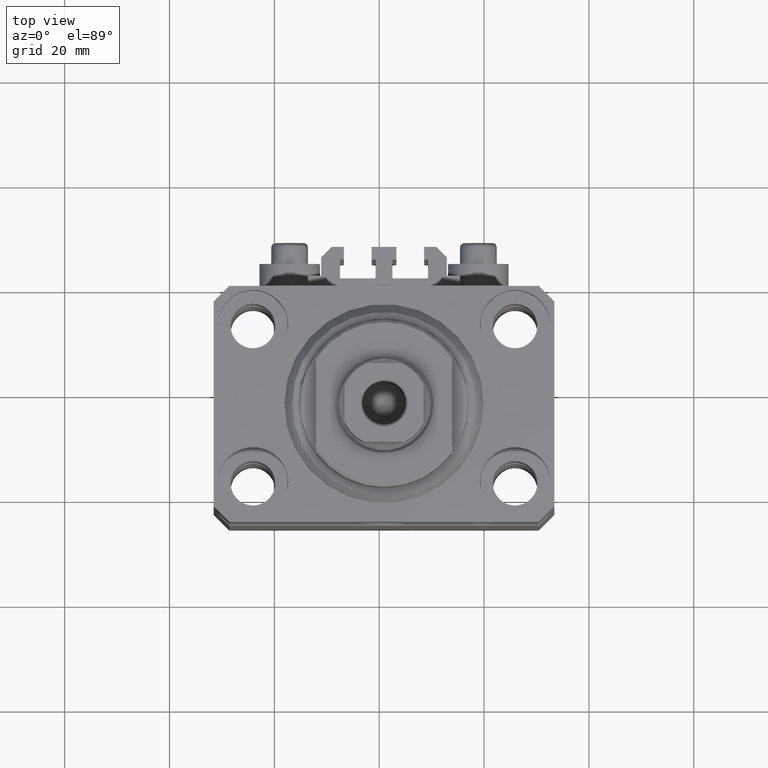
[diagram: clean part render]
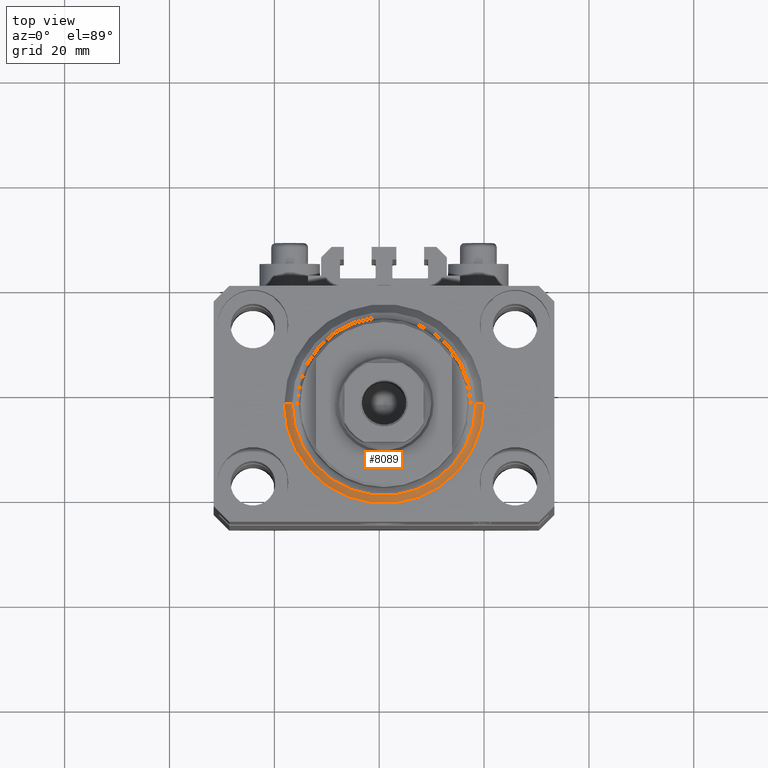
[diagram: same view with one face highlighted and labeled with its STEP entity id]
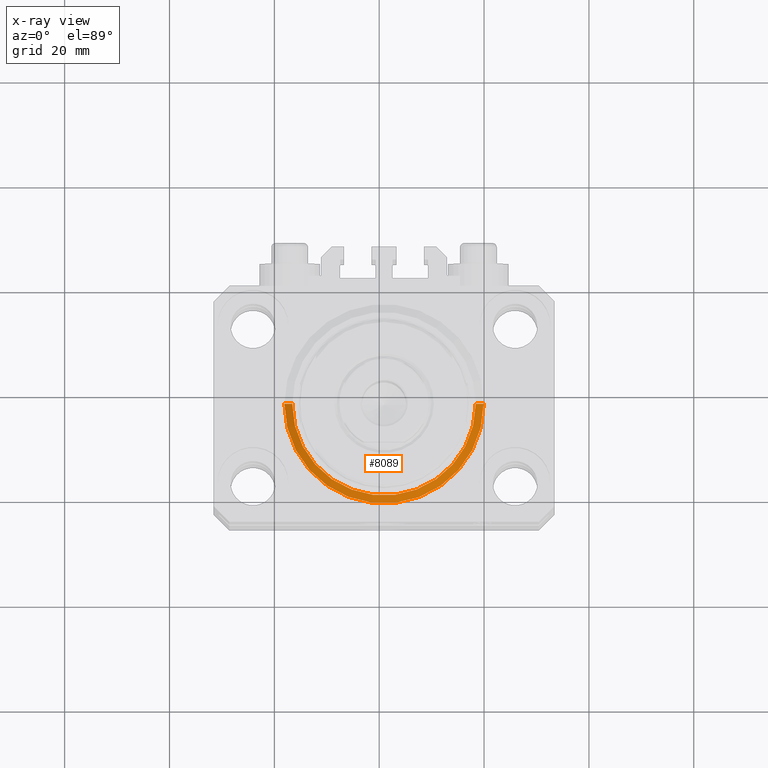
[diagram: x-ray of the same camera — body ghosted, the highlighted face saturated]
A machine part, top view. The second image highlights one B-rep face of the part: STEP entity #8089.
The next image is the same camera in x-ray: the body ghosted, the highlighted face saturated — about 0% of this face is hidden behind the body in this view.
In plain terms, the highlighted conical surface has half-angle 45 deg.
Its self-contained STEP definition (entity closure, byte-faithful):
#1962 = DIRECTION ( 'NONE',  ( -0.000000000000000000, -0.000000000000000000, -1.000000000000000000 ) ) ;
#2720 = CARTESIAN_POINT ( 'NONE',  ( 17.49999999999999289, 0.000000000000000000, 0.000000000000000000 ) ) ;
#3351 = ORIENTED_EDGE ( 'NONE', *, *, #5655, .T. ) ;
#5655 = EDGE_CURVE ( 'NONE', #27926, #13508, #8432, .T. ) ;
#6998 = CARTESIAN_POINT ( 'NONE',  ( 0.000000000000000000, 0.000000000000000000, 1.500000000000004885 ) ) ;
#7109 = EDGE_CURVE ( 'NONE', #27926, #26127, #14863, .T. ) ;
#8089 = ADVANCED_FACE ( 'NONE', ( #31847 ), #37746, .T. ) ;
#8432 = LINE ( 'NONE', #44957, #30035 ) ;
#11134 = EDGE_CURVE ( 'NONE', #33187, #13508, #15820, .T. ) ;
#12553 = CARTESIAN_POINT ( 'NONE',  ( -17.49999999999999289, 2.234980408443919215E-15, 0.000000000000000000 ) ) ;
#12671 = EDGE_LOOP ( 'NONE', ( #32502, #18381, #3351, #30304 ) ) ;
#13240 = CARTESIAN_POINT ( 'NONE',  ( -19.00000000000000000, 0.000000000000000000, 1.500000000000004885 ) ) ;
#13508 = VERTEX_POINT ( 'NONE', #41537 ) ;
#14863 = CIRCLE ( 'NONE', #28602, 17.49999999999999289 ) ;
#15820 = CIRCLE ( 'NONE', #24240, 19.00000000000000000 ) ;
#16724 = LINE ( 'NONE', #46316, #17087 ) ;
#17087 = VECTOR ( 'NONE', #20557, 1000.000000000000000 ) ;
#18381 = ORIENTED_EDGE ( 'NONE', *, *, #7109, .F. ) ;
#20557 = DIRECTION ( 'NONE',  ( -0.7071067811865483499, 8.659560562354943952E-17, 0.7071067811865467956 ) ) ;
#21395 = EDGE_CURVE ( 'NONE', #26127, #33187, #16724, .T. ) ;
#22547 = CARTESIAN_POINT ( 'NONE',  ( 0.000000000000000000, 0.000000000000000000, 1.500000000000004885 ) ) ;
#24240 = AXIS2_PLACEMENT_3D ( 'NONE', #22547, #37079, #43990 ) ;
#26127 = VERTEX_POINT ( 'NONE', #12553 ) ;
#27926 = VERTEX_POINT ( 'NONE', #2720 ) ;
#28602 = AXIS2_PLACEMENT_3D ( 'NONE', #45633, #1962, #33958 ) ;
#30035 = VECTOR ( 'NONE', #41617, 1000.000000000000000 ) ;
#30132 = AXIS2_PLACEMENT_3D ( 'NONE', #6998, #35892, #46880 ) ;
#30304 = ORIENTED_EDGE ( 'NONE', *, *, #11134, .F. ) ;
#31847 = FACE_OUTER_BOUND ( 'NONE', #12671, .T. ) ;
#32502 = ORIENTED_EDGE ( 'NONE', *, *, #21395, .F. ) ;
#33187 = VERTEX_POINT ( 'NONE', #13240 ) ;
#33958 = DIRECTION ( 'NONE',  ( 1.000000000000000000, 0.000000000000000000, 0.000000000000000000 ) ) ;
#35892 = DIRECTION ( 'NONE',  ( -0.000000000000000000, -0.000000000000000000, 1.000000000000000000 ) ) ;
#37079 = DIRECTION ( 'NONE',  ( -0.000000000000000000, -0.000000000000000000, 1.000000000000000000 ) ) ;
#37746 = CONICAL_SURFACE ( 'NONE', #30132, 19.00000000000000000, 0.7853981633974492782 ) ;
#41537 = CARTESIAN_POINT ( 'NONE',  ( 19.00000000000000000, 2.326828918379970970E-15, 1.500000000000004885 ) ) ;
#41617 = DIRECTION ( 'NONE',  ( 0.7071067811865483499, 0.000000000000000000, 0.7071067811865467956 ) ) ;
#43990 = DIRECTION ( 'NONE',  ( 1.000000000000000000, 0.000000000000000000, 0.000000000000000000 ) ) ;
#44957 = CARTESIAN_POINT ( 'NONE',  ( 19.00000000000000000, 0.000000000000000000, 1.500000000000004885 ) ) ;
#45633 = CARTESIAN_POINT ( 'NONE',  ( 0.000000000000000000, 0.000000000000000000, 0.000000000000000000 ) ) ;
#46316 = CARTESIAN_POINT ( 'NONE',  ( -19.00000000000000000, 2.326828918379970970E-15, 1.500000000000004885 ) ) ;
#46880 = DIRECTION ( 'NONE',  ( 1.000000000000000000, 0.000000000000000000, 0.000000000000000000 ) ) ;